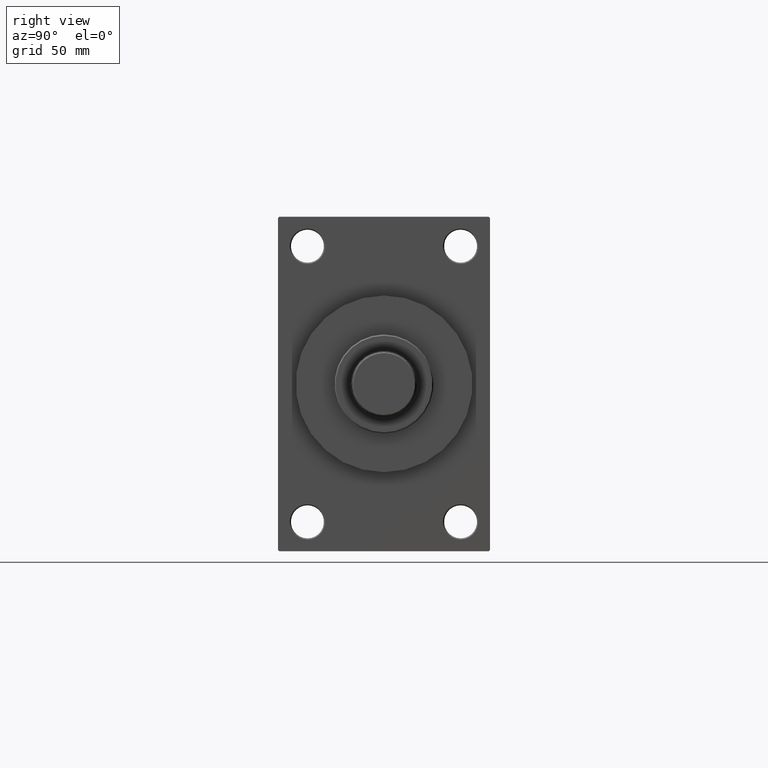
[diagram: clean part render]
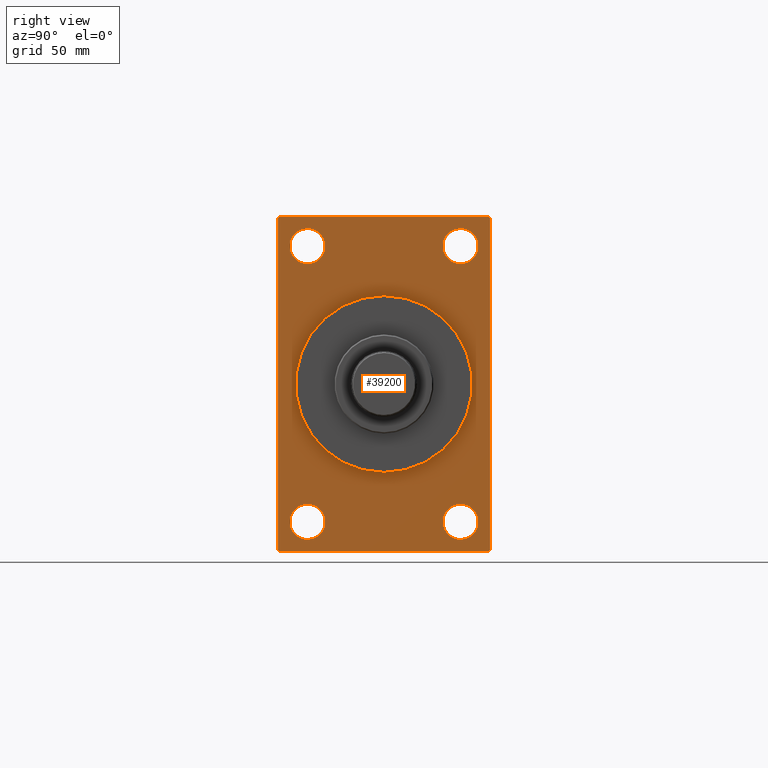
[diagram: same view with one face highlighted and labeled with its STEP entity id]
A machine part, right view. The second image highlights one B-rep face of the part: STEP entity #39200.
In plain terms, the highlighted planar face has unit normal (-1, 0, 0).
Its self-contained STEP definition (entity closure, byte-faithful):
#156 = LINE ( 'NONE', #43312, #45298 ) ;
#252 = LINE ( 'NONE', #18812, #28898 ) ;
#450 = AXIS2_PLACEMENT_3D ( 'NONE', #24860, #13791, #10403 ) ;
#895 = PLANE ( 'NONE',  #38429 ) ;
#1382 = FACE_BOUND ( 'NONE', #47163, .T. ) ;
#1534 = CARTESIAN_POINT ( 'NONE',  ( 169.9999999999999716, -45.00000000000000000, 70.49999999999997158 ) ) ;
#1549 = ORIENTED_EDGE ( 'NONE', *, *, #12520, .T. ) ;
#1907 = ORIENTED_EDGE ( 'NONE', *, *, #29006, .F. ) ;
#1976 = LINE ( 'NONE', #20286, #7313 ) ;
#2114 = DIRECTION ( 'NONE',  ( 1.000000000000000000, 0.000000000000000000, 0.000000000000000000 ) ) ;
#2118 = EDGE_LOOP ( 'NONE', ( #37253, #7170 ) ) ;
#2166 = ORIENTED_EDGE ( 'NONE', *, *, #8328, .F. ) ;
#3091 = EDGE_CURVE ( 'NONE', #38472, #11574, #252, .T. ) ;
#3329 = EDGE_LOOP ( 'NONE', ( #13296, #35447 ) ) ;
#4423 = CARTESIAN_POINT ( 'NONE',  ( 169.9999999999999716, 45.00000000000000000, 71.00000000000000000 ) ) ;
#4980 = CIRCLE ( 'NONE', #31899, 7.500000000000000000 ) ;
#5076 = CARTESIAN_POINT ( 'NONE',  ( 169.9999999999999716, -44.49999999999997158, -71.00000000000000000 ) ) ;
#5122 = CIRCLE ( 'NONE', #32029, 37.50000000000000711 ) ;
#5224 = VERTEX_POINT ( 'NONE', #30639 ) ;
#5247 = FACE_BOUND ( 'NONE', #12139, .T. ) ;
#5351 = LINE ( 'NONE', #13054, #35357 ) ;
#5539 = EDGE_LOOP ( 'NONE', ( #25163, #9101 ) ) ;
#5585 = VERTEX_POINT ( 'NONE', #17301 ) ;
#5614 = DIRECTION ( 'NONE',  ( 0.000000000000000000, 0.000000000000000000, 1.000000000000000000 ) ) ;
#5736 = DIRECTION ( 'NONE',  ( 0.000000000000000000, 0.000000000000000000, -1.000000000000000000 ) ) ;
#5812 = AXIS2_PLACEMENT_3D ( 'NONE', #12552, #46505, #16879 ) ;
#5860 = CARTESIAN_POINT ( 'NONE',  ( 169.9999999999999716, 32.49999999999998579, 58.50000000000000711 ) ) ;
#6857 = EDGE_CURVE ( 'NONE', #37687, #19678, #25037, .T. ) ;
#7150 = CARTESIAN_POINT ( 'NONE',  ( 169.9999999999999716, -32.50000000000001421, 66.00000000000001421 ) ) ;
#7170 = ORIENTED_EDGE ( 'NONE', *, *, #6857, .T. ) ;
#7214 = AXIS2_PLACEMENT_3D ( 'NONE', #40612, #7592, #33610 ) ;
#7313 = VECTOR ( 'NONE', #31608, 1000.000000000000000 ) ;
#7416 = ORIENTED_EDGE ( 'NONE', *, *, #37841, .T. ) ;
#7541 = DIRECTION ( 'NONE',  ( -1.000000000000000000, -0.000000000000000000, -0.000000000000000000 ) ) ;
#7592 = DIRECTION ( 'NONE',  ( -1.000000000000000000, -0.000000000000000000, -0.000000000000000000 ) ) ;
#7659 = EDGE_CURVE ( 'NONE', #40081, #11496, #7858, .T. ) ;
#7858 = LINE ( 'NONE', #1534, #25880 ) ;
#8328 = EDGE_CURVE ( 'NONE', #19765, #23846, #5122, .T. ) ;
#8610 = ORIENTED_EDGE ( 'NONE', *, *, #7659, .T. ) ;
#8613 = FACE_OUTER_BOUND ( 'NONE', #9865, .T. ) ;
#8779 = VERTEX_POINT ( 'NONE', #22149 ) ;
#8905 = VECTOR ( 'NONE', #25778, 1000.000000000000000 ) ;
#9101 = ORIENTED_EDGE ( 'NONE', *, *, #45467, .T. ) ;
#9231 = DIRECTION ( 'NONE',  ( -1.000000000000000000, -0.000000000000000000, -0.000000000000000000 ) ) ;
#9378 = VECTOR ( 'NONE', #34011, 1000.000000000000000 ) ;
#9865 = EDGE_LOOP ( 'NONE', ( #28820, #28229, #44568, #27962, #14578, #36872, #25536, #8610 ) ) ;
#10403 = DIRECTION ( 'NONE',  ( 0.000000000000000000, 0.000000000000000000, 1.000000000000000000 ) ) ;
#11170 = CARTESIAN_POINT ( 'NONE',  ( 169.9999999999999716, 0.000000000000000000, 0.000000000000000000 ) ) ;
#11496 = VERTEX_POINT ( 'NONE', #32329 ) ;
#11574 = VERTEX_POINT ( 'NONE', #30845 ) ;
#11793 = LINE ( 'NONE', #25539, #8905 ) ;
#12139 = EDGE_LOOP ( 'NONE', ( #2166, #1907 ) ) ;
#12520 = EDGE_CURVE ( 'NONE', #37850, #8779, #47562, .T. ) ;
#12552 = CARTESIAN_POINT ( 'NONE',  ( 169.9999999999999716, 32.49999999999998579, 58.50000000000000711 ) ) ;
#13054 = CARTESIAN_POINT ( 'NONE',  ( 169.9999999999999716, 44.50000000000000000, 71.00000000000000000 ) ) ;
#13179 = EDGE_CURVE ( 'NONE', #5585, #40265, #156, .T. ) ;
#13296 = ORIENTED_EDGE ( 'NONE', *, *, #20464, .T. ) ;
#13791 = DIRECTION ( 'NONE',  ( -1.000000000000000000, -0.000000000000000000, -0.000000000000000000 ) ) ;
#14578 = ORIENTED_EDGE ( 'NONE', *, *, #18581, .F. ) ;
#14634 = DIRECTION ( 'NONE',  ( 0.000000000000000000, 0.7071067811865474617, -0.7071067811865474617 ) ) ;
#14968 = DIRECTION ( 'NONE',  ( -0.000000000000000000, 0.7071067811865474617, 0.7071067811865474617 ) ) ;
#15229 = DIRECTION ( 'NONE',  ( -1.000000000000000000, -0.000000000000000000, -0.000000000000000000 ) ) ;
#15687 = LINE ( 'NONE', #19300, #9378 ) ;
#16727 = CARTESIAN_POINT ( 'NONE',  ( 169.9999999999999716, 32.49999999999998579, -50.99999999999997868 ) ) ;
#16879 = DIRECTION ( 'NONE',  ( 0.000000000000000000, 0.000000000000000000, 1.000000000000000000 ) ) ;
#17301 = CARTESIAN_POINT ( 'NONE',  ( 169.9999999999999716, -45.00000000000000000, -70.50000000000000000 ) ) ;
#17446 = CARTESIAN_POINT ( 'NONE',  ( 169.9999999999999716, 44.49999999999997158, -71.00000000000000000 ) ) ;
#17898 = CARTESIAN_POINT ( 'NONE',  ( 169.9999999999999716, 4.592425496802575156E-15, -37.50000000000000711 ) ) ;
#18581 = EDGE_CURVE ( 'NONE', #27010, #11574, #15687, .T. ) ;
#18761 = CIRCLE ( 'NONE', #7214, 7.500000000000000000 ) ;
#18812 = CARTESIAN_POINT ( 'NONE',  ( 169.9999999999999716, 45.00000000000000000, -70.49999999999997158 ) ) ;
#19127 = VERTEX_POINT ( 'NONE', #7150 ) ;
#19300 = CARTESIAN_POINT ( 'NONE',  ( 169.9999999999999716, 45.00000000000000000, 71.00000000000000000 ) ) ;
#19577 = DIRECTION ( 'NONE',  ( 0.000000000000000000, 0.000000000000000000, 1.000000000000000000 ) ) ;
#19678 = VERTEX_POINT ( 'NONE', #27828 ) ;
#19765 = VERTEX_POINT ( 'NONE', #25166 ) ;
#19850 = VERTEX_POINT ( 'NONE', #40276 ) ;
#19932 = DIRECTION ( 'NONE',  ( -1.000000000000000000, 0.000000000000000000, -0.000000000000000000 ) ) ;
#20286 = CARTESIAN_POINT ( 'NONE',  ( 169.9999999999999716, 45.00000000000000000, -71.00000000000000000 ) ) ;
#20464 = EDGE_CURVE ( 'NONE', #34637, #29344, #20963, .T. ) ;
#20963 = CIRCLE ( 'NONE', #27127, 7.499999999999992895 ) ;
#21123 = AXIS2_PLACEMENT_3D ( 'NONE', #35238, #23673, #19577 ) ;
#22149 = CARTESIAN_POINT ( 'NONE',  ( 169.9999999999999716, -32.50000000000001421, -65.99999999999997158 ) ) ;
#22488 = DIRECTION ( 'NONE',  ( 0.000000000000000000, -1.000000000000000000, 0.000000000000000000 ) ) ;
#22836 = EDGE_CURVE ( 'NONE', #19850, #19127, #18761, .T. ) ;
#23081 = CARTESIAN_POINT ( 'NONE',  ( 169.9999999999999716, 0.000000000000000000, 0.000000000000000000 ) ) ;
#23673 = DIRECTION ( 'NONE',  ( -1.000000000000000000, -0.000000000000000000, -0.000000000000000000 ) ) ;
#23846 = VERTEX_POINT ( 'NONE', #17898 ) ;
#24468 = AXIS2_PLACEMENT_3D ( 'NONE', #29670, #15229, #44391 ) ;
#24860 = CARTESIAN_POINT ( 'NONE',  ( 169.9999999999999716, 32.49999999999998579, -58.49999999999998579 ) ) ;
#25037 = CIRCLE ( 'NONE', #450, 7.500000000000007105 ) ;
#25163 = ORIENTED_EDGE ( 'NONE', *, *, #22836, .T. ) ;
#25166 = CARTESIAN_POINT ( 'NONE',  ( 169.9999999999999716, 0.000000000000000000, 37.50000000000000711 ) ) ;
#25536 = ORIENTED_EDGE ( 'NONE', *, *, #29060, .T. ) ;
#25539 = CARTESIAN_POINT ( 'NONE',  ( 169.9999999999999716, -45.00000000000000000, 71.00000000000000000 ) ) ;
#25778 = DIRECTION ( 'NONE',  ( 0.000000000000000000, 0.000000000000000000, -1.000000000000000000 ) ) ;
#25880 = VECTOR ( 'NONE', #45627, 1000.000000000000114 ) ;
#26333 = LINE ( 'NONE', #4423, #31908 ) ;
#26808 = EDGE_CURVE ( 'NONE', #29344, #34637, #27343, .T. ) ;
#27010 = VERTEX_POINT ( 'NONE', #28451 ) ;
#27127 = AXIS2_PLACEMENT_3D ( 'NONE', #5860, #9231, #5614 ) ;
#27343 = CIRCLE ( 'NONE', #5812, 7.499999999999992895 ) ;
#27754 = CARTESIAN_POINT ( 'NONE',  ( 169.9999999999999716, -44.49999999999994316, 71.00000000000000000 ) ) ;
#27828 = CARTESIAN_POINT ( 'NONE',  ( 169.9999999999999716, 32.49999999999998579, -65.99999999999997158 ) ) ;
#27962 = ORIENTED_EDGE ( 'NONE', *, *, #3091, .T. ) ;
#28229 = ORIENTED_EDGE ( 'NONE', *, *, #13179, .T. ) ;
#28451 = CARTESIAN_POINT ( 'NONE',  ( 169.9999999999999716, 45.00000000000000000, 70.50000000000000000 ) ) ;
#28820 = ORIENTED_EDGE ( 'NONE', *, *, #30611, .T. ) ;
#28898 = VECTOR ( 'NONE', #14968, 1000.000000000000114 ) ;
#29006 = EDGE_CURVE ( 'NONE', #23846, #19765, #37289, .T. ) ;
#29060 = EDGE_CURVE ( 'NONE', #5224, #40081, #26333, .T. ) ;
#29344 = VERTEX_POINT ( 'NONE', #32555 ) ;
#29448 = DIRECTION ( 'NONE',  ( 0.000000000000000000, 0.000000000000000000, 1.000000000000000000 ) ) ;
#29670 = CARTESIAN_POINT ( 'NONE',  ( 169.9999999999999716, -32.50000000000001421, -58.49999999999998579 ) ) ;
#30424 = CARTESIAN_POINT ( 'NONE',  ( 169.9999999999999716, 32.49999999999998579, 51.00000000000001421 ) ) ;
#30545 = FACE_BOUND ( 'NONE', #2118, .T. ) ;
#30611 = EDGE_CURVE ( 'NONE', #11496, #5585, #11793, .T. ) ;
#30639 = CARTESIAN_POINT ( 'NONE',  ( 169.9999999999999716, 44.50000000000000000, 71.00000000000000000 ) ) ;
#30845 = CARTESIAN_POINT ( 'NONE',  ( 169.9999999999999716, 45.00000000000000000, -70.49999999999997158 ) ) ;
#31450 = CIRCLE ( 'NONE', #45311, 7.500000000000007105 ) ;
#31608 = DIRECTION ( 'NONE',  ( 0.000000000000000000, -1.000000000000000000, 0.000000000000000000 ) ) ;
#31899 = AXIS2_PLACEMENT_3D ( 'NONE', #34297, #42233, #45596 ) ;
#31908 = VECTOR ( 'NONE', #22488, 1000.000000000000000 ) ;
#32029 = AXIS2_PLACEMENT_3D ( 'NONE', #46932, #2114, #5736 ) ;
#32329 = CARTESIAN_POINT ( 'NONE',  ( 169.9999999999999716, -45.00000000000000000, 70.49999999999997158 ) ) ;
#32555 = CARTESIAN_POINT ( 'NONE',  ( 169.9999999999999716, 32.49999999999998579, 66.00000000000000000 ) ) ;
#32618 = DIRECTION ( 'NONE',  ( 1.000000000000000000, 0.000000000000000000, 0.000000000000000000 ) ) ;
#32857 = CARTESIAN_POINT ( 'NONE',  ( 169.9999999999999716, -32.50000000000001421, -50.99999999999997868 ) ) ;
#33610 = DIRECTION ( 'NONE',  ( 0.000000000000000000, 0.000000000000000000, 1.000000000000000000 ) ) ;
#34011 = DIRECTION ( 'NONE',  ( 0.000000000000000000, 0.000000000000000000, -1.000000000000000000 ) ) ;
#34297 = CARTESIAN_POINT ( 'NONE',  ( 169.9999999999999716, -32.50000000000001421, 58.50000000000001421 ) ) ;
#34637 = VERTEX_POINT ( 'NONE', #30424 ) ;
#34977 = AXIS2_PLACEMENT_3D ( 'NONE', #11170, #32618, #44676 ) ;
#35238 = CARTESIAN_POINT ( 'NONE',  ( 169.9999999999999716, 32.49999999999998579, -58.49999999999998579 ) ) ;
#35357 = VECTOR ( 'NONE', #42696, 1000.000000000000114 ) ;
#35447 = ORIENTED_EDGE ( 'NONE', *, *, #26808, .T. ) ;
#36872 = ORIENTED_EDGE ( 'NONE', *, *, #39059, .T. ) ;
#37253 = ORIENTED_EDGE ( 'NONE', *, *, #45457, .T. ) ;
#37289 = CIRCLE ( 'NONE', #34977, 37.50000000000000711 ) ;
#37687 = VERTEX_POINT ( 'NONE', #16727 ) ;
#37841 = EDGE_CURVE ( 'NONE', #8779, #37850, #31450, .T. ) ;
#37850 = VERTEX_POINT ( 'NONE', #32857 ) ;
#38265 = FACE_BOUND ( 'NONE', #5539, .T. ) ;
#38429 = AXIS2_PLACEMENT_3D ( 'NONE', #23081, #19932, #42110 ) ;
#38472 = VERTEX_POINT ( 'NONE', #17446 ) ;
#39059 = EDGE_CURVE ( 'NONE', #27010, #5224, #5351, .T. ) ;
#39200 = ADVANCED_FACE ( 'NONE', ( #38265, #1382, #30545, #42346, #5247, #8613 ), #895, .F. ) ;
#40081 = VERTEX_POINT ( 'NONE', #27754 ) ;
#40265 = VERTEX_POINT ( 'NONE', #5076 ) ;
#40276 = CARTESIAN_POINT ( 'NONE',  ( 169.9999999999999716, -32.50000000000001421, 51.00000000000001421 ) ) ;
#40564 = CARTESIAN_POINT ( 'NONE',  ( 169.9999999999999716, -32.50000000000001421, -58.49999999999998579 ) ) ;
#40612 = CARTESIAN_POINT ( 'NONE',  ( 169.9999999999999716, -32.50000000000001421, 58.50000000000001421 ) ) ;
#42110 = DIRECTION ( 'NONE',  ( -0.000000000000000000, 0.000000000000000000, 1.000000000000000000 ) ) ;
#42233 = DIRECTION ( 'NONE',  ( -1.000000000000000000, -0.000000000000000000, -0.000000000000000000 ) ) ;
#42346 = FACE_BOUND ( 'NONE', #3329, .T. ) ;
#42696 = DIRECTION ( 'NONE',  ( 0.000000000000000000, -0.7071067811865474617, 0.7071067811865474617 ) ) ;
#43312 = CARTESIAN_POINT ( 'NONE',  ( 169.9999999999999716, -44.50000000000000000, -71.00000000000000000 ) ) ;
#44226 = CIRCLE ( 'NONE', #21123, 7.500000000000007105 ) ;
#44391 = DIRECTION ( 'NONE',  ( 0.000000000000000000, 0.000000000000000000, 1.000000000000000000 ) ) ;
#44568 = ORIENTED_EDGE ( 'NONE', *, *, #46353, .F. ) ;
#44676 = DIRECTION ( 'NONE',  ( 0.000000000000000000, 0.000000000000000000, -1.000000000000000000 ) ) ;
#45298 = VECTOR ( 'NONE', #14634, 1000.000000000000114 ) ;
#45311 = AXIS2_PLACEMENT_3D ( 'NONE', #40564, #7541, #29448 ) ;
#45457 = EDGE_CURVE ( 'NONE', #19678, #37687, #44226, .T. ) ;
#45467 = EDGE_CURVE ( 'NONE', #19127, #19850, #4980, .T. ) ;
#45596 = DIRECTION ( 'NONE',  ( 0.000000000000000000, 0.000000000000000000, 1.000000000000000000 ) ) ;
#45627 = DIRECTION ( 'NONE',  ( -0.000000000000000000, -0.7071067811865474617, -0.7071067811865474617 ) ) ;
#46353 = EDGE_CURVE ( 'NONE', #38472, #40265, #1976, .T. ) ;
#46505 = DIRECTION ( 'NONE',  ( -1.000000000000000000, -0.000000000000000000, -0.000000000000000000 ) ) ;
#46932 = CARTESIAN_POINT ( 'NONE',  ( 169.9999999999999716, 0.000000000000000000, 0.000000000000000000 ) ) ;
#47163 = EDGE_LOOP ( 'NONE', ( #7416, #1549 ) ) ;
#47562 = CIRCLE ( 'NONE', #24468, 7.500000000000007105 ) ;